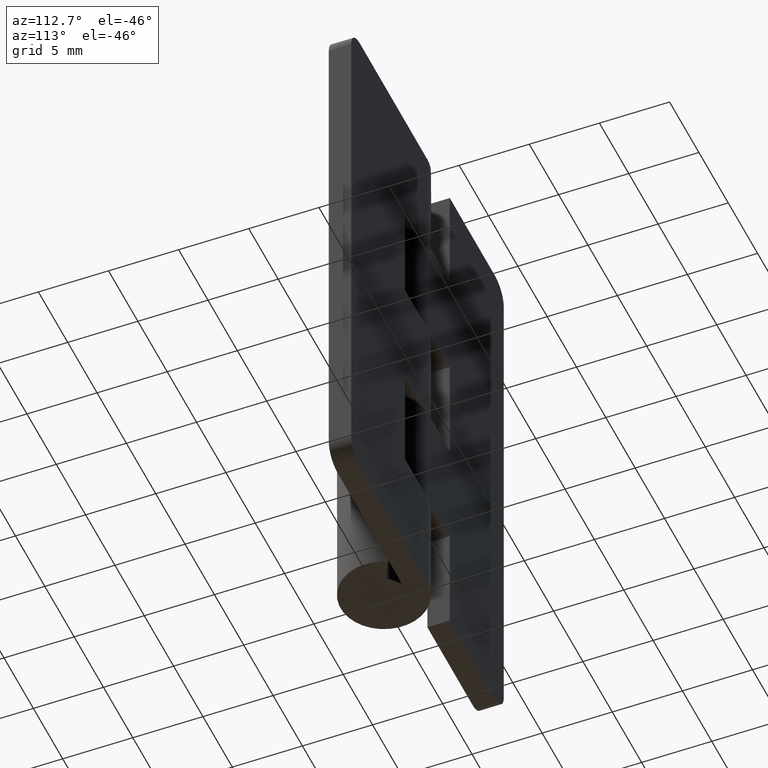
[diagram: clean part render]
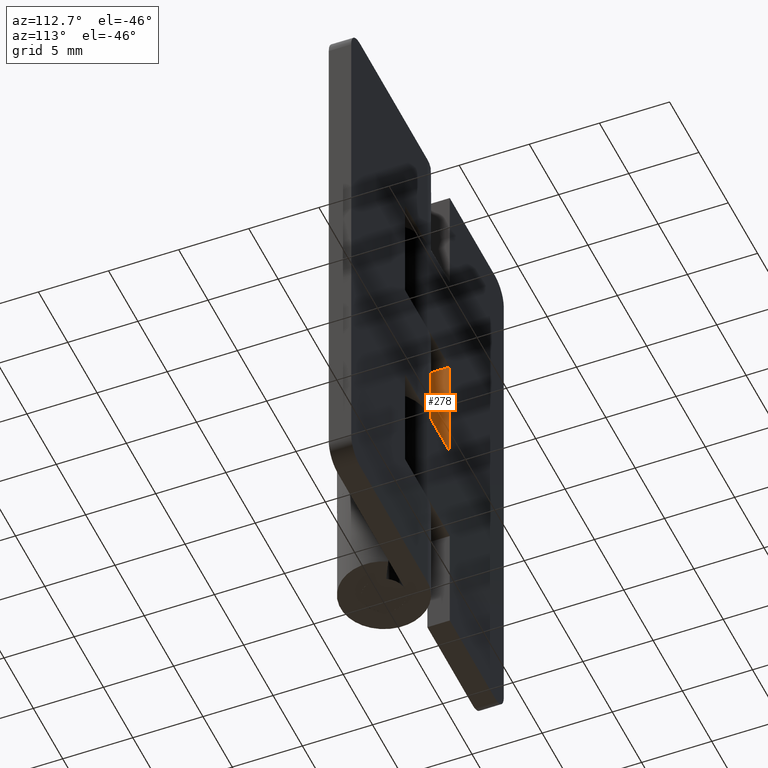
[diagram: same view with one face highlighted and labeled with its STEP entity id]
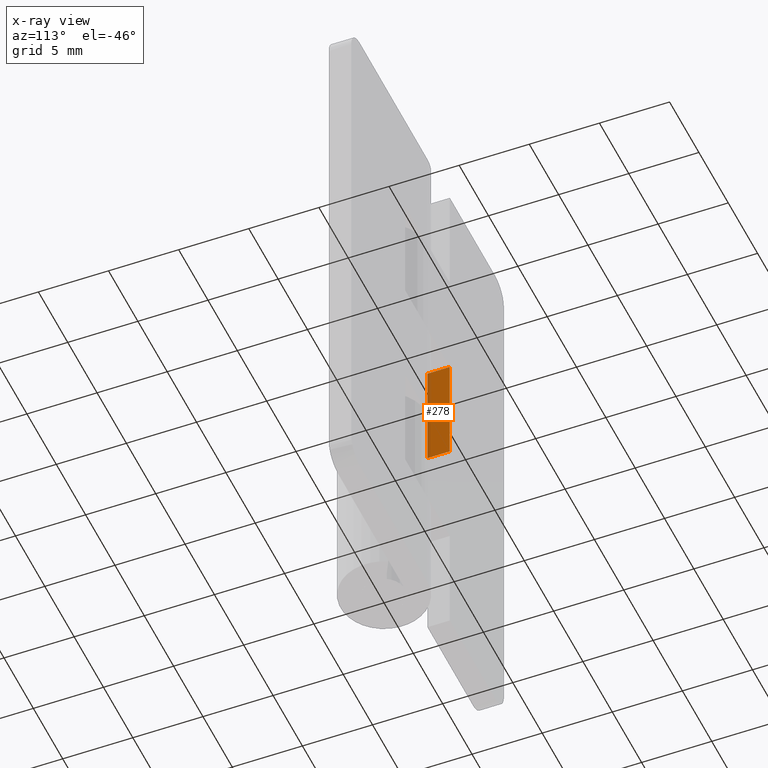
[diagram: x-ray of the same camera — body ghosted, the highlighted face saturated]
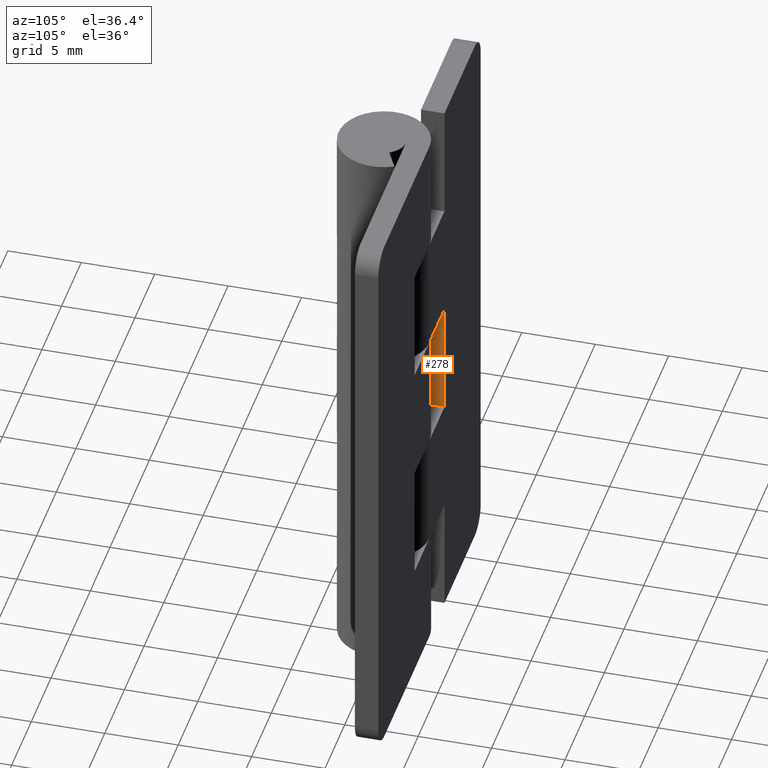
[diagram: same view with one face highlighted and labeled with its STEP entity id]
A machine part, auxiliary view. The second image highlights one B-rep face of the part: STEP entity #278.
The next image is the same camera in x-ray: the body ghosted, the highlighted face saturated — about 12% of this face is hidden behind the body in this view.
A second angle (auxiliary view) of the same face is appended — the face is thin or edge-on in the first view.
In plain terms, the highlighted face is a freeform B-spline surface patch.
Its self-contained STEP definition (entity closure, byte-faithful):
#222=CARTESIAN_POINT('',(-3.799995000000095,1.499999999999946,24.0));
#223=VERTEX_POINT('',#222);
#229=CARTESIAN_POINT('',(-3.799995000000095,3.099998000000050,24.0));
#230=VERTEX_POINT('',#229);
#231=CARTESIAN_POINT('',(-3.799995000000095,1.499999999999946,24.0));
#232=CARTESIAN_POINT('',(-3.799995000000095,3.099998000000050,24.0));
#233=QUASI_UNIFORM_CURVE('',1,(#231,#232),.UNSPECIFIED.,.F.,.U.);
#234=EDGE_CURVE('',#223,#230,#233,.T.);
#251=CARTESIAN_POINT('',(-3.799995000000095,1.420080103001048,15.600400015505549));
#252=CARTESIAN_POINT('',(-3.799995000000095,1.420080103001048,24.399600199071170));
#253=CARTESIAN_POINT('',(-3.799995000000095,3.179917939914240,15.600400015505549));
#254=CARTESIAN_POINT('',(-3.799995000000095,3.179917939914240,24.399600199071170));
#255=B_SPLINE_SURFACE_WITH_KNOTS('',1,1,((#251,#253),(#252,#254)),.UNSPECIFIED.,.F.,.F.,.U.,(2,2),(2,2),(0.0,8.799200183565620),(0.041708334948495,0.958291687403247),.UNSPECIFIED.);
#256=CARTESIAN_POINT('',(-3.799995000000095,1.499999999999946,16.0));
#257=VERTEX_POINT('',#256);
#258=CARTESIAN_POINT('',(-3.799995000000095,1.499999999999946,24.0));
#259=CARTESIAN_POINT('',(-3.799995000000095,1.499999999999946,16.0));
#260=QUASI_UNIFORM_CURVE('',1,(#258,#259),.UNSPECIFIED.,.F.,.U.);
#261=EDGE_CURVE('',#223,#257,#260,.T.);
#262=ORIENTED_EDGE('',*,*,#261,.T.);
#263=CARTESIAN_POINT('',(-3.799995000000095,3.099998000000050,16.0));
#264=VERTEX_POINT('',#263);
#265=CARTESIAN_POINT('',(-3.799995000000095,1.499999999999946,16.0));
#266=CARTESIAN_POINT('',(-3.799995000000095,3.099998000000050,16.0));
#267=QUASI_UNIFORM_CURVE('',1,(#265,#266),.UNSPECIFIED.,.F.,.U.);
#268=EDGE_CURVE('',#257,#264,#267,.T.);
#269=ORIENTED_EDGE('',*,*,#268,.T.);
#270=CARTESIAN_POINT('',(-3.799995000000095,3.099998000000050,16.0));
#271=CARTESIAN_POINT('',(-3.799995000000095,3.099998000000050,24.0));
#272=QUASI_UNIFORM_CURVE('',1,(#270,#271),.UNSPECIFIED.,.F.,.U.);
#273=EDGE_CURVE('',#264,#230,#272,.T.);
#274=ORIENTED_EDGE('',*,*,#273,.T.);
#275=ORIENTED_EDGE('',*,*,#234,.F.);
#276=EDGE_LOOP('',(#262,#269,#274,#275));
#277=FACE_OUTER_BOUND('',#276,.T.);
#278=ADVANCED_FACE('',(#277),#255,.F.);